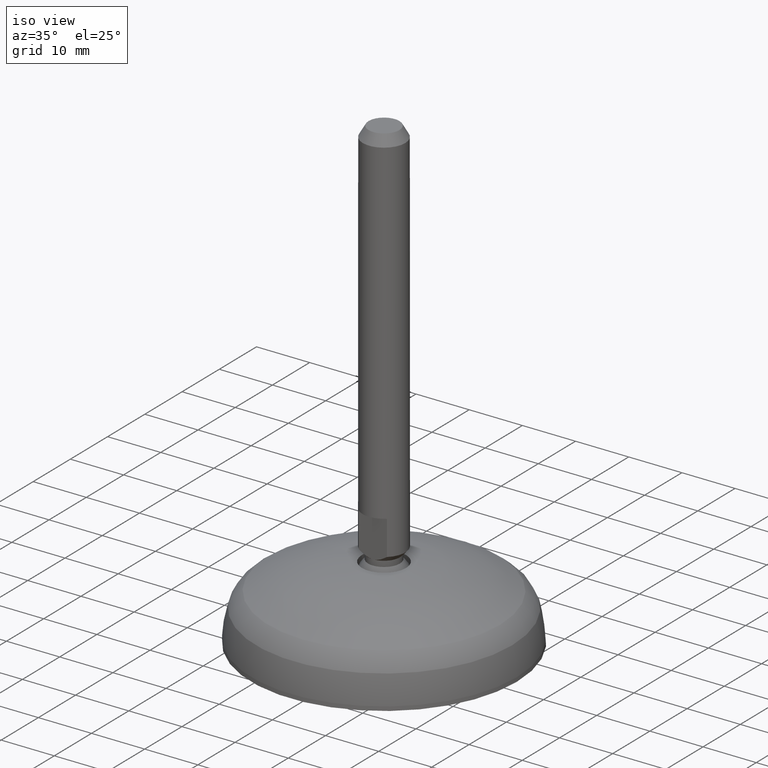
[diagram: clean part render]
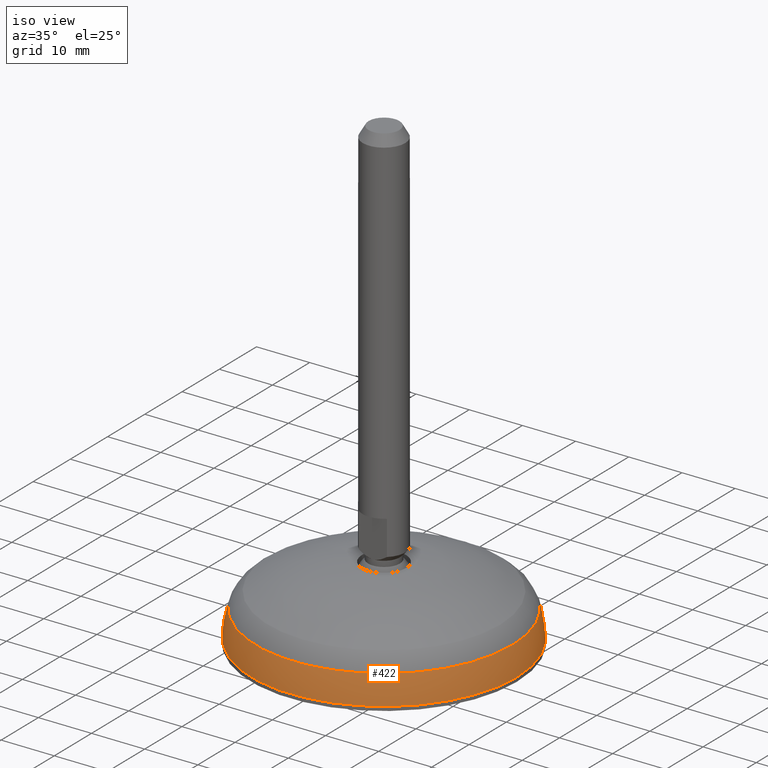
[diagram: same view with one face highlighted and labeled with its STEP entity id]
A machine part, iso view. The second image highlights one B-rep face of the part: STEP entity #422.
In plain terms, the highlighted face is a freeform B-spline surface patch.
Its self-contained STEP definition (entity closure, byte-faithful):
#326=CARTESIAN_POINT('',(-24.091013040610093,1.289336E-014,5.948699521490269));
#327=VERTEX_POINT('',#326);
#335=CARTESIAN_POINT('',(24.091013040611365,1.289336E-014,5.948699521490187));
#336=VERTEX_POINT('',#335);
#337=CARTESIAN_POINT('',(7.677779E-013,1.289336E-014,5.948699521490187));
#338=DIRECTION('',(0.0,0.0,-1.0));
#339=DIRECTION('',(-1.0,0.0,0.0));
#340=AXIS2_PLACEMENT_3D('',#337,#338,#339);
#341=CIRCLE('',#340,24.091013040610598);
#342=EDGE_CURVE('',#336,#327,#341,.T.);
#344=CARTESIAN_POINT('',(7.677779E-013,1.289336E-014,5.948699521490187));
#345=DIRECTION('',(0.0,0.0,-1.0));
#346=DIRECTION('',(-1.0,0.0,0.0));
#347=AXIS2_PLACEMENT_3D('',#344,#345,#346);
#348=CIRCLE('',#347,24.091013040610598);
#349=EDGE_CURVE('',#327,#336,#348,.T.);
#357=CARTESIAN_POINT('',(-24.965913146885338,-0.000001412285281,0.757479923569908));
#358=CARTESIAN_POINT('',(-24.873243386808426,-0.000001407043088,3.411197506677894));
#359=CARTESIAN_POINT('',(-24.091012823960650,-0.000001362793446,5.948700224287483));
#360=CARTESIAN_POINT('',(-24.965914559170706,24.965913146885388,0.757479923569907));
#361=CARTESIAN_POINT('',(-24.873244793851601,24.873243386808479,3.411197506677893));
#362=CARTESIAN_POINT('',(-24.091014186754183,24.091012823960700,5.948700224287483));
#363=CARTESIAN_POINT('',(3.469447E-015,24.965913146885391,0.757479923569908));
#364=CARTESIAN_POINT('',(3.469447E-015,24.873243386808483,3.411197506677894));
#365=CARTESIAN_POINT('',(3.469447E-015,24.091012823960703,5.948700224287482));
#366=CARTESIAN_POINT('',(24.965913146885384,24.965913146885395,0.757479923569907));
#367=CARTESIAN_POINT('',(24.873243386808472,24.873243386808483,3.411197506677894));
#368=CARTESIAN_POINT('',(24.091012823960696,24.091012823960707,5.948700224287483));
#369=CARTESIAN_POINT('',(24.965913146885381,1.289336E-014,0.757479923569908));
#370=CARTESIAN_POINT('',(24.873243386808468,1.289336E-014,3.411197506677894));
#371=CARTESIAN_POINT('',(24.091012823960693,1.289336E-014,5.948700224287482));
#372=CARTESIAN_POINT('',(24.965913146885384,-24.965913146885367,0.757479923569907));
#373=CARTESIAN_POINT('',(24.873243386808472,-24.873243386808454,3.411197506677894));
#374=CARTESIAN_POINT('',(24.091012823960696,-24.091012823960678,5.948700224287483));
#375=CARTESIAN_POINT('',(3.469447E-015,-24.965913146885367,0.757479923569908));
#376=CARTESIAN_POINT('',(3.469447E-015,-24.873243386808454,3.411197506677894));
#377=CARTESIAN_POINT('',(3.469447E-015,-24.091012823960675,5.948700224287482));
#378=CARTESIAN_POINT('',(-24.965914559170706,-24.965913146885367,0.757479923569907));
#379=CARTESIAN_POINT('',(-24.873244793851601,-24.873243386808461,3.411197506677893));
#380=CARTESIAN_POINT('',(-24.091014186754183,-24.091012823960686,5.948700224287483));
#381=CARTESIAN_POINT('',(-24.965913146885331,0.000001412285307,0.757479923569908));
#382=CARTESIAN_POINT('',(-24.873243386808426,0.000001407043113,3.411197506677895));
#383=CARTESIAN_POINT('',(-24.091012823960650,0.000001362793471,5.948700224287484));
#391=(BOUNDED_SURFACE()B_SPLINE_SURFACE(2,2,((#357,#360,#363,#366,#369,#372,#375,#378,#381),(#358,#361,#364,#367,#370,#373,#376,#379,#382),(#359,#362,#365,#368,#371,#374,#377,#380,#383)),.UNSPECIFIED.,.F.,.T.,.U.)B_SPLINE_SURFACE_WITH_KNOTS((3,3),(3,2,2,2,3),(0.509278544809230,0.580073513893496),(-1.000000E-008,0.250000000000000,0.500000000000000,0.750000000000000,1.000000010000000),.UNSPECIFIED.)GEOMETRIC_REPRESENTATION_ITEM()RATIONAL_B_SPLINE_SURFACE(((0.910770547080343,0.644012004185011,0.910770525739662,0.644012014855352,0.910770525739662,0.644012014855352,0.910770525739662,0.644012004185011,0.910770547080343),(0.912887158845068,0.645508674657121,0.912887137454791,0.645508685352259,0.912887137454791,0.645508685352259,0.912887137454791,0.645508674657121,0.912887158845068),(0.931153443594937,0.658424887954189,0.931153421776654,0.658424898863330,0.931153421776654,0.658424898863330,0.931153421776654,0.658424887954189,0.931153443594937)))REPRESENTATION_ITEM('')SURFACE());
#392=CARTESIAN_POINT('',(-24.965913120644696,1.289336E-014,0.757480675003186));
#393=VERTEX_POINT('',#392);
#394=CARTESIAN_POINT('',(-4.987932185025302,1.289336E-014,0.059834207861021));
#395=DIRECTION('',(0.0,-1.0,0.0));
#396=DIRECTION('',(-1.0,0.0,0.0));
#397=AXIS2_PLACEMENT_3D('',#394,#395,#396);
#398=CIRCLE('',#397,19.990158400000002);
#399=EDGE_CURVE('',#327,#393,#398,.T.);
#400=ORIENTED_EDGE('',*,*,#399,.T.);
#401=CARTESIAN_POINT('',(24.965913120644853,1.289336E-014,0.757480675003178));
#402=VERTEX_POINT('',#401);
#403=CARTESIAN_POINT('',(9.776539E-014,1.289336E-014,0.757480675003178));
#404=DIRECTION('',(0.0,0.0,-1.0));
#405=DIRECTION('',(-1.0,0.0,0.0));
#406=AXIS2_PLACEMENT_3D('',#403,#404,#405);
#407=CIRCLE('',#406,24.965913120644753);
#408=EDGE_CURVE('',#402,#393,#407,.T.);
#409=ORIENTED_EDGE('',*,*,#408,.F.);
#410=CARTESIAN_POINT('',(9.776539E-014,1.289336E-014,0.757480675003178));
#411=DIRECTION('',(0.0,0.0,-1.0));
#412=DIRECTION('',(-1.0,0.0,0.0));
#413=AXIS2_PLACEMENT_3D('',#410,#411,#412);
#414=CIRCLE('',#413,24.965913120644753);
#415=EDGE_CURVE('',#393,#402,#414,.T.);
#416=ORIENTED_EDGE('',*,*,#415,.F.);
#417=ORIENTED_EDGE('',*,*,#399,.F.);
#418=ORIENTED_EDGE('',*,*,#349,.T.);
#419=ORIENTED_EDGE('',*,*,#342,.T.);
#420=EDGE_LOOP('',(#400,#409,#416,#417,#418,#419));
#421=FACE_OUTER_BOUND('',#420,.T.);
#422=ADVANCED_FACE('',(#421),#391,.T.);